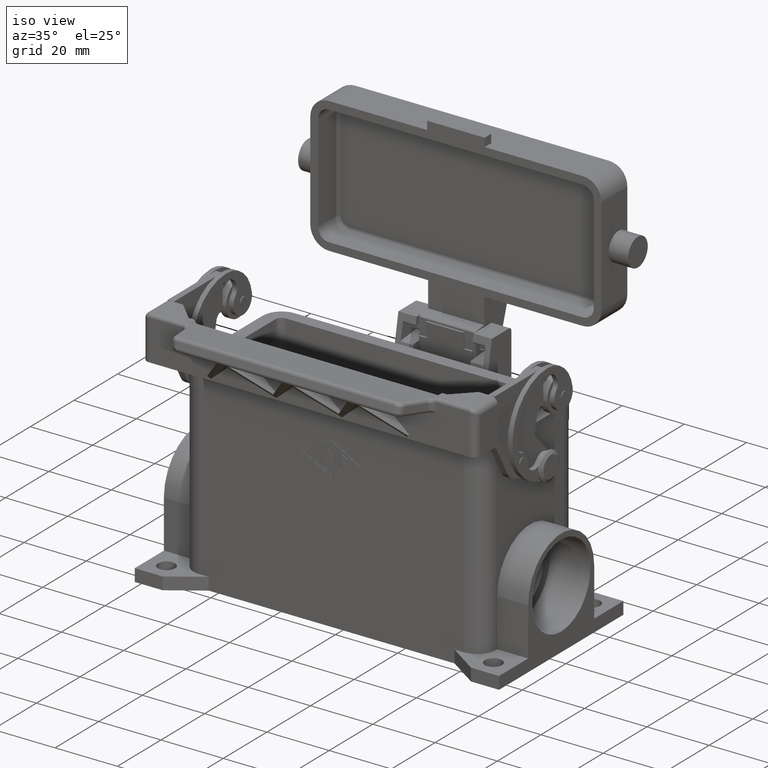
[diagram: clean part render]
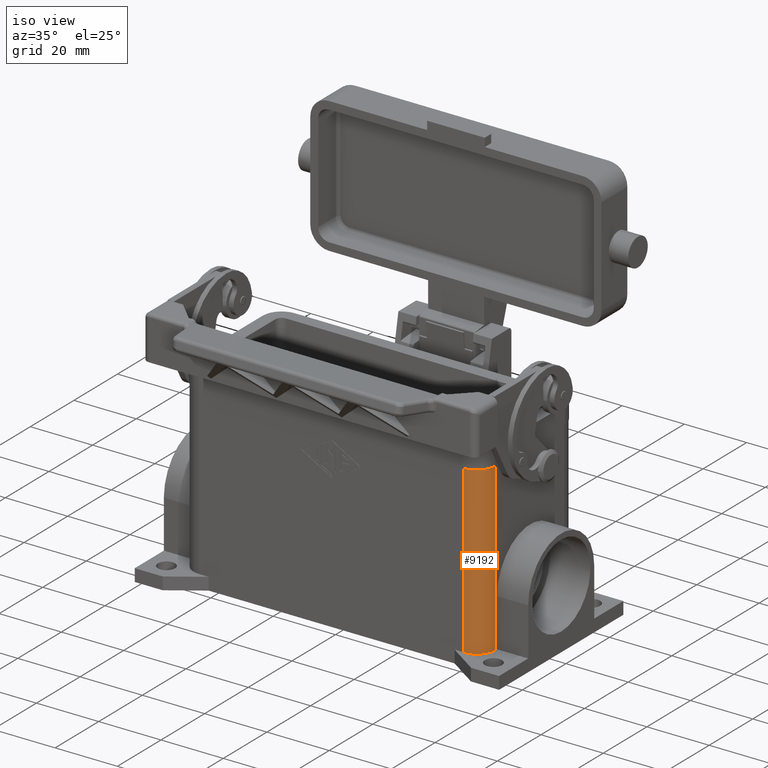
[diagram: same view with one face highlighted and labeled with its STEP entity id]
A machine part, iso view. The second image highlights one B-rep face of the part: STEP entity #9192.
In plain terms, the highlighted cylindrical surface (edge-blend (fillet) strip) has radius 6 mm, axis along (0, 0, 1).
Its self-contained STEP definition (entity closure, byte-faithful):
#5955=CARTESIAN_POINT('',(42.500000000000000,-21.750000000000007,-29.999999999999986));
#5956=VERTEX_POINT('',#5955);
#5963=CARTESIAN_POINT('',(42.500000000000000,-21.750000000000007,23.500000000000021));
#5964=VERTEX_POINT('',#5963);
#5965=CARTESIAN_POINT('',(42.500000000000000,-21.750000000000007,-29.999999999999986));
#5966=DIRECTION('',(0.0,0.0,1.0));
#5967=VECTOR('',#5966,53.500000000000007);
#5968=LINE('',#5965,#5967);
#5969=EDGE_CURVE('',#5956,#5964,#5968,.T.);
#9071=CARTESIAN_POINT('',(48.500000000000014,-15.750000000000004,23.500000000000021));
#9072=VERTEX_POINT('',#9071);
#9073=CARTESIAN_POINT('',(42.500000000000000,-15.750000000000004,23.500000000000007));
#9074=DIRECTION('',(0.0,0.0,-1.0));
#9075=DIRECTION('',(0.0,-1.0,0.0));
#9076=AXIS2_PLACEMENT_3D('',#9073,#9074,#9075);
#9077=CIRCLE('',#9076,6.000000000000005);
#9078=EDGE_CURVE('',#9072,#5964,#9077,.T.);
#9168=CARTESIAN_POINT('',(42.500000000000000,-15.750000000000004,-34.0));
#9169=DIRECTION('',(0.0,0.0,1.0));
#9170=DIRECTION('',(0.0,-1.0,0.0));
#9171=AXIS2_PLACEMENT_3D('',#9168,#9169,#9170);
#9172=CYLINDRICAL_SURFACE('',#9171,6.000000000000005);
#9173=CARTESIAN_POINT('',(48.500000000000014,-15.750000000000004,-29.999999999999986));
#9174=VERTEX_POINT('',#9173);
#9175=CARTESIAN_POINT('',(42.500000000000000,-15.750000000000004,-29.999999999999986));
#9176=DIRECTION('',(0.0,0.0,-1.0));
#9177=DIRECTION('',(0.0,-1.0,0.0));
#9178=AXIS2_PLACEMENT_3D('',#9175,#9176,#9177);
#9179=CIRCLE('',#9178,6.000000000000005);
#9180=EDGE_CURVE('',#9174,#5956,#9179,.T.);
#9181=ORIENTED_EDGE('',*,*,#9180,.F.);
#9182=CARTESIAN_POINT('',(48.500000000000014,-15.750000000000004,-29.999999999999986));
#9183=DIRECTION('',(0.0,0.0,1.0));
#9184=VECTOR('',#9183,53.500000000000007);
#9185=LINE('',#9182,#9184);
#9186=EDGE_CURVE('',#9174,#9072,#9185,.T.);
#9187=ORIENTED_EDGE('',*,*,#9186,.T.);
#9188=ORIENTED_EDGE('',*,*,#9078,.T.);
#9189=ORIENTED_EDGE('',*,*,#5969,.F.);
#9190=EDGE_LOOP('',(#9181,#9187,#9188,#9189));
#9191=FACE_OUTER_BOUND('',#9190,.T.);
#9192=ADVANCED_FACE('',(#9191),#9172,.T.);